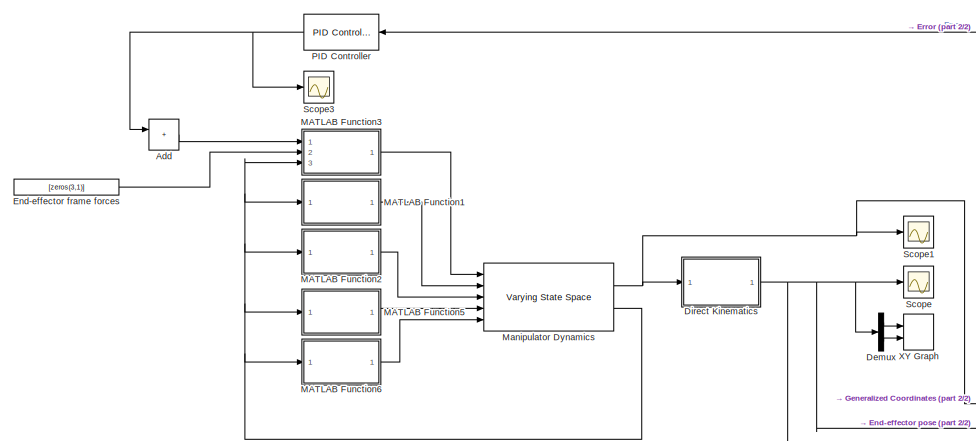
[diagram: root canvas - part 1/2, left side, full height]
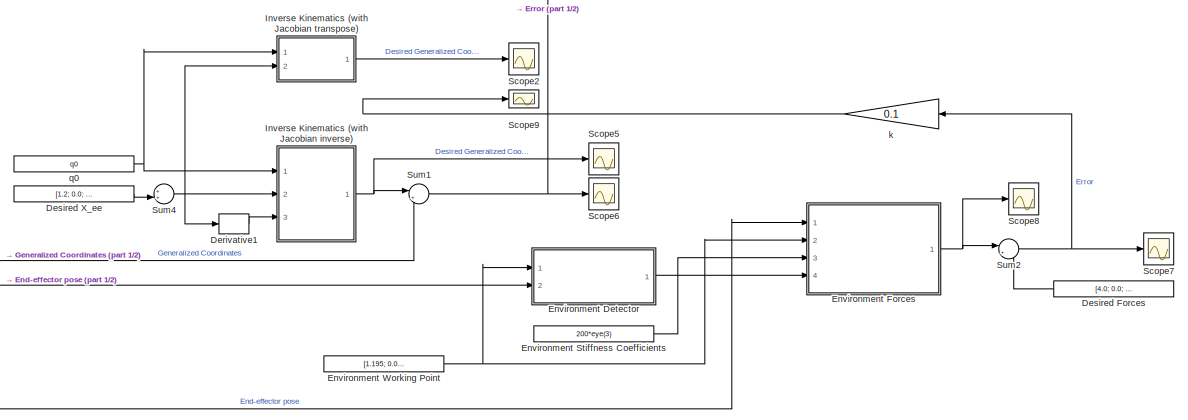
[diagram: root canvas - part 2/2, middle right region]
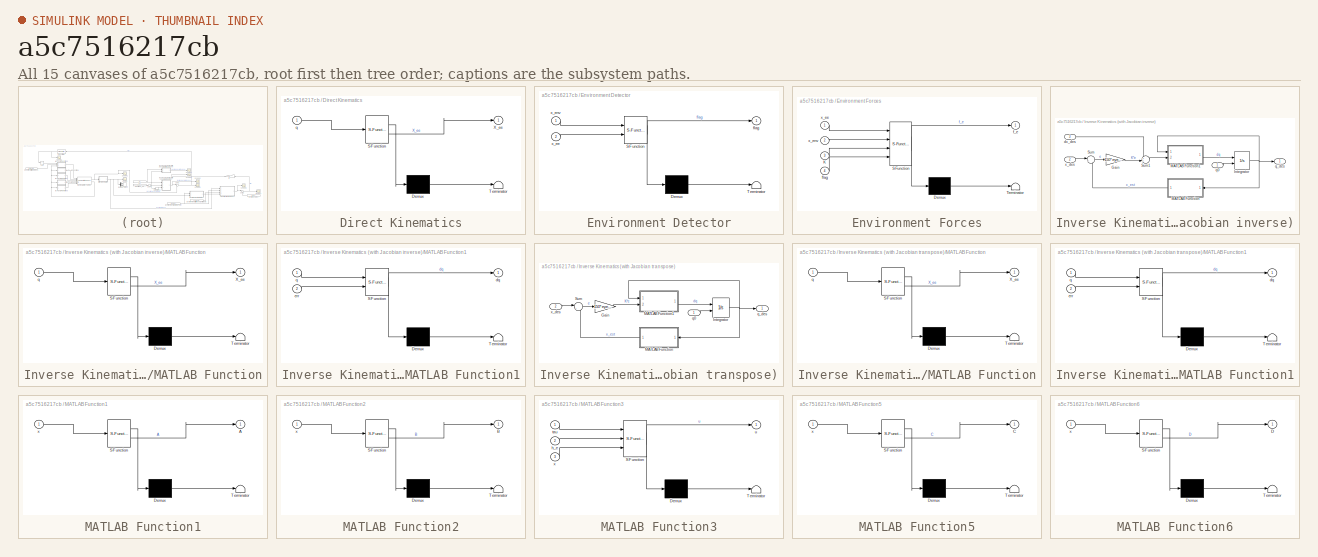
[diagram: thumbnail index - all 15 canvases of the model, root first then tree order]
MODEL slx_a5c7516217cb
KIND model
CONFIG AbsTol = auto
CONFIG EnableMultiTasking = off
CONFIG FixedStep = auto
CONFIG MaxStep = auto
CONFIG MinStep = auto
CONFIG RelTol = 1e-3
CONFIG SampleTimeConstraint = Unconstrained
CONFIG SolverName = ode45
CONFIG StartTime = 0.0
CONFIG StopTime = 60
BLOCK [Sum] Add
  IconShape = rectangular
  Ports = [2, 1]
BLOCK [Demux] Demux
  Outputs = 3
  Ports = [1, 3]
BLOCK [Derivative] Derivative1
BLOCK [Constant] Desired Forces
  Value = [4.0; 0.0; 0.0]
BLOCK [Constant] Desired X_ee
  Value = [1.2; 0.0; 1.0]
  VectorParams1D = off
BLOCK [SubSystem] Direct Kinematics
  ErrorFcn = Stateflow.Translate.translate
  PermitHierarchicalResolution = ExplicitOnly
  Ports = [1, 1]
  RequestExecContextInheritance = off
  SFBlockType = MATLAB Function
  TreatAsAtomicUnit = on
BLOCK [Demux] Direct Kinematics/ Demux 
  Outputs = 1
  Ports = [1, 1]
BLOCK [S-Function] Direct Kinematics/ SFunction 
  EnableBusSupport = on
  FunctionName = sf_sfun
  PortCounts = [1 2]
  Ports = [1, 2]
  SFcnIsStateOwnerBlock = off
  SFunctionDeploymentMode = off
  Tag = Stateflow S-Function 2
BLOCK [Terminator] Direct Kinematics/ Terminator 
BLOCK [Outport] Direct Kinematics/X_ee
BLOCK [Inport] Direct Kinematics/q
BLOCK [Constant] End-effector frame forces
  Value = [zeros(3,1)]
BLOCK [SubSystem] Environment Detector
  ErrorFcn = Stateflow.Translate.translate
  PermitHierarchicalResolution = ExplicitOnly
  Ports = [2, 1]
  RequestExecContextInheritance = off
  SFBlockType = MATLAB Function
  TreatAsAtomicUnit = on
BLOCK [Demux] Environment Detector/ Demux 
  Outputs = 1
  Ports = [1, 1]
BLOCK [S-Function] Environment Detector/ SFunction 
  EnableBusSupport = on
  FunctionName = sf_sfun
  PortCounts = [2 2]
  Ports = [2, 2]
  SFcnIsStateOwnerBlock = off
  SFunctionDeploymentMode = off
  Tag = Stateflow S-Function 12
BLOCK [Terminator] Environment Detector/ Terminator 
BLOCK [Outport] Environment Detector/flag
BLOCK [Inport] Environment Detector/x_ee
  Port = 2
BLOCK [Inport] Environment Detector/x_env
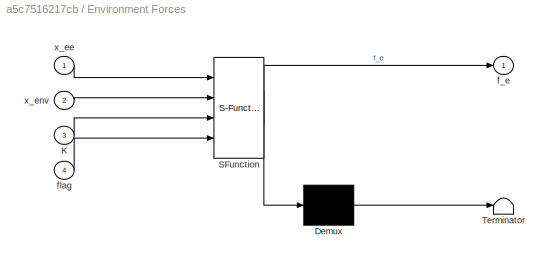
BLOCK [SubSystem] Environment Forces
  ErrorFcn = Stateflow.Translate.translate
  PermitHierarchicalResolution = ExplicitOnly
  Ports = [4, 1]
  RequestExecContextInheritance = off
  SFBlockType = MATLAB Function
  TreatAsAtomicUnit = on
BLOCK [Demux] Environment Forces/ Demux 
  Outputs = 1
  Ports = [1, 1]
BLOCK [S-Function] Environment Forces/ SFunction 
  EnableBusSupport = on
  FunctionName = sf_sfun
  PortCounts = [4 2]
  Ports = [4, 2]
  SFcnIsStateOwnerBlock = off
  SFunctionDeploymentMode = off
  Tag = Stateflow S-Function 13
BLOCK [Terminator] Environment Forces/ Terminator 
BLOCK [Inport] Environment Forces/K
  Port = 3
BLOCK [Outport] Environment Forces/f_e
BLOCK [Inport] Environment Forces/flag
  Port = 4
BLOCK [Inport] Environment Forces/x_ee
BLOCK [Inport] Environment Forces/x_env
  Port = 2
BLOCK [Constant] Environment Stiffness Coefficients
  Value = 200*eye(3)
BLOCK [Constant] Environment Working Point
  Value = [1.195; 0.0; 1.0]
BLOCK [SubSystem] Inverse Kinematics (with Jacobian inverse)
  Ports = [3, 1]
  RequestExecContextInheritance = off
BLOCK [Gain] Inverse Kinematics (with Jacobian inverse)/Gain
  Gain = 150*eye(3)
  Multiplication = Matrix(K*u)
BLOCK [Integrator] Inverse Kinematics (with Jacobian inverse)/Integrator
  InitialConditionSource = external
  Ports = [2, 1]
BLOCK [SubSystem] Inverse Kinematics (with Jacobian inverse)/MATLAB Function
  ErrorFcn = Stateflow.Translate.translate
  PermitHierarchicalResolution = ExplicitOnly
  Ports = [1, 1]
  RequestExecContextInheritance = off
  SFBlockType = MATLAB Function
  TreatAsAtomicUnit = on
BLOCK [Demux] Inverse Kinematics (with Jacobian inverse)/MATLAB Function/ Demux 
  Outputs = 1
  Ports = [1, 1]
BLOCK [S-Function] Inverse Kinematics (with Jacobian inverse)/MATLAB Function/ SFunction 
  EnableBusSupport = on
  FunctionName = sf_sfun
  PortCounts = [1 2]
  Ports = [1, 2]
  SFcnIsStateOwnerBlock = off
  SFunctionDeploymentMode = off
  Tag = Stateflow S-Function 6
BLOCK [Terminator] Inverse Kinematics (with Jacobian inverse)/MATLAB Function/ Terminator 
BLOCK [Outport] Inverse Kinematics (with Jacobian inverse)/MATLAB Function/X_ee
BLOCK [Inport] Inverse Kinematics (with Jacobian inverse)/MATLAB Function/q
BLOCK [SubSystem] Inverse Kinematics (with Jacobian inverse)/MATLAB Function1
  ErrorFcn = Stateflow.Translate.translate
  PermitHierarchicalResolution = ExplicitOnly
  Ports = [2, 1]
  RequestExecContextInheritance = off
  SFBlockType = MATLAB Function
  TreatAsAtomicUnit = on
BLOCK [Demux] Inverse Kinematics (with Jacobian inverse)/MATLAB Function1/ Demux 
  Outputs = 1
  Ports = [1, 1]
BLOCK [S-Function] Inverse Kinematics (with Jacobian inverse)/MATLAB Function1/ SFunction 
  EnableBusSupport = on
  FunctionName = sf_sfun
  PortCounts = [2 2]
  Ports = [2, 2]
  SFcnIsStateOwnerBlock = off
  SFunctionDeploymentMode = off
  Tag = Stateflow S-Function 7
BLOCK [Terminator] Inverse Kinematics (with Jacobian inverse)/MATLAB Function1/ Terminator 
BLOCK [Outport] Inverse Kinematics (with Jacobian inverse)/MATLAB Function1/dq
BLOCK [Inport] Inverse Kinematics (with Jacobian inverse)/MATLAB Function1/err
  Port = 2
BLOCK [Inport] Inverse Kinematics (with Jacobian inverse)/MATLAB Function1/q
BLOCK [Sum] Inverse Kinematics (with Jacobian inverse)/Sum
  Inputs = |+-
  Ports = [2, 1]
BLOCK [Sum] Inverse Kinematics (with Jacobian inverse)/Sum1
  Inputs = ++|
  Ports = [2, 1]
BLOCK [Inport] Inverse Kinematics (with Jacobian inverse)/dx_des
  Port = 3
BLOCK [Inport] Inverse Kinematics (with Jacobian inverse)/q0
BLOCK [Outport] Inverse Kinematics (with Jacobian inverse)/q_des
BLOCK [Inport] Inverse Kinematics (with Jacobian inverse)/x_des
  Port = 2
BLOCK [SubSystem] Inverse Kinematics (with Jacobian transpose)
  Ports = [2, 1]
  RequestExecContextInheritance = off
BLOCK [Gain] Inverse Kinematics (with Jacobian transpose)/Gain
  Gain = 150*eye(3)
  Multiplication = Matrix(K*u)
BLOCK [Integrator] Inverse Kinematics (with Jacobian transpose)/Integrator
  InitialConditionSource = external
  Ports = [2, 1]
BLOCK [SubSystem] Inverse Kinematics (with Jacobian transpose)/MATLAB Function
  ErrorFcn = Stateflow.Translate.translate
  PermitHierarchicalResolution = ExplicitOnly
  Ports = [1, 1]
  RequestExecContextInheritance = off
  SFBlockType = MATLAB Function
  TreatAsAtomicUnit = on
BLOCK [Demux] Inverse Kinematics (with Jacobian transpose)/MATLAB Function/ Demux 
  Outputs = 1
  Ports = [1, 1]
BLOCK [S-Function] Inverse Kinematics (with Jacobian transpose)/MATLAB Function/ SFunction 
  EnableBusSupport = on
  FunctionName = sf_sfun
  PortCounts = [1 2]
  Ports = [1, 2]
  SFcnIsStateOwnerBlock = off
  SFunctionDeploymentMode = off
  Tag = Stateflow S-Function 10
BLOCK [Terminator] Inverse Kinematics (with Jacobian transpose)/MATLAB Function/ Terminator 
BLOCK [Outport] Inverse Kinematics (with Jacobian transpose)/MATLAB Function/X_ee
BLOCK [Inport] Inverse Kinematics (with Jacobian transpose)/MATLAB Function/q
BLOCK [SubSystem] Inverse Kinematics (with Jacobian transpose)/MATLAB Function1
  ErrorFcn = Stateflow.Translate.translate
  PermitHierarchicalResolution = ExplicitOnly
  Ports = [2, 1]
  RequestExecContextInheritance = off
  SFBlockType = MATLAB Function
  TreatAsAtomicUnit = on
BLOCK [Demux] Inverse Kinematics (with Jacobian transpose)/MATLAB Function1/ Demux 
  Outputs = 1
  Ports = [1, 1]
BLOCK [S-Function] Inverse Kinematics (with Jacobian transpose)/MATLAB Function1/ SFunction 
  EnableBusSupport = on
  FunctionName = sf_sfun
  PortCounts = [2 2]
  Ports = [2, 2]
  SFcnIsStateOwnerBlock = off
  SFunctionDeploymentMode = off
  Tag = Stateflow S-Function 11
BLOCK [Terminator] Inverse Kinematics (with Jacobian transpose)/MATLAB Function1/ Terminator 
BLOCK [Outport] Inverse Kinematics (with Jacobian transpose)/MATLAB Function1/dq
BLOCK [Inport] Inverse Kinematics (with Jacobian transpose)/MATLAB Function1/err
  Port = 2
BLOCK [Inport] Inverse Kinematics (with Jacobian transpose)/MATLAB Function1/q
BLOCK [Sum] Inverse Kinematics (with Jacobian transpose)/Sum
  Inputs = |+-
  Ports = [2, 1]
BLOCK [Inport] Inverse Kinematics (with Jacobian transpose)/q0
BLOCK [Outport] Inverse Kinematics (with Jacobian transpose)/q_des
BLOCK [Inport] Inverse Kinematics (with Jacobian transpose)/x_des
  Port = 2
BLOCK [SubSystem] MATLAB Function1
  ErrorFcn = Stateflow.Translate.translate
  PermitHierarchicalResolution = ExplicitOnly
  Ports = [1, 1]
  RequestExecContextInheritance = off
  SFBlockType = MATLAB Function
  TreatAsAtomicUnit = on
BLOCK [Demux] MATLAB Function1/ Demux 
  Outputs = 1
  Ports = [1, 1]
BLOCK [S-Function] MATLAB Function1/ SFunction 
  EnableBusSupport = on
  FunctionName = sf_sfun
  PortCounts = [1 2]
  Ports = [1, 2]
  SFcnIsStateOwnerBlock = off
  SFunctionDeploymentMode = off
  Tag = Stateflow S-Function 1
BLOCK [Terminator] MATLAB Function1/ Terminator 
BLOCK [Outport] MATLAB Function1/A
BLOCK [Inport] MATLAB Function1/x
BLOCK [SubSystem] MATLAB Function2
  ErrorFcn = Stateflow.Translate.translate
  PermitHierarchicalResolution = ExplicitOnly
  Ports = [1, 1]
  RequestExecContextInheritance = off
  SFBlockType = MATLAB Function
  TreatAsAtomicUnit = on
BLOCK [Demux] MATLAB Function2/ Demux 
  Outputs = 1
  Ports = [1, 1]
BLOCK [S-Function] MATLAB Function2/ SFunction 
  EnableBusSupport = on
  FunctionName = sf_sfun
  PortCounts = [1 2]
  Ports = [1, 2]
  SFcnIsStateOwnerBlock = off
  SFunctionDeploymentMode = off
  Tag = Stateflow S-Function 3
BLOCK [Terminator] MATLAB Function2/ Terminator 
BLOCK [Outport] MATLAB Function2/B
BLOCK [Inport] MATLAB Function2/x
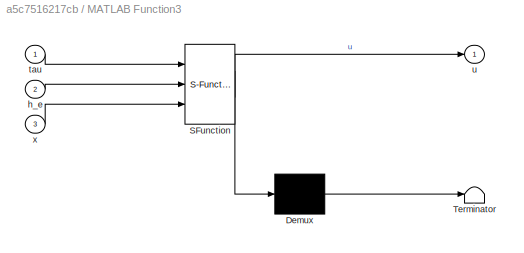
BLOCK [SubSystem] MATLAB Function3
  ErrorFcn = Stateflow.Translate.translate
  PermitHierarchicalResolution = ExplicitOnly
  Ports = [3, 1]
  RequestExecContextInheritance = off
  SFBlockType = MATLAB Function
  TreatAsAtomicUnit = on
BLOCK [Demux] MATLAB Function3/ Demux 
  Outputs = 1
  Ports = [1, 1]
BLOCK [S-Function] MATLAB Function3/ SFunction 
  EnableBusSupport = on
  FunctionName = sf_sfun
  PortCounts = [3 2]
  Ports = [3, 2]
  SFcnIsStateOwnerBlock = off
  SFunctionDeploymentMode = off
  Tag = Stateflow S-Function 4
BLOCK [Terminator] MATLAB Function3/ Terminator 
BLOCK [Inport] MATLAB Function3/h_e
  Port = 2
BLOCK [Inport] MATLAB Function3/tau
BLOCK [Outport] MATLAB Function3/u
BLOCK [Inport] MATLAB Function3/x
  Port = 3
BLOCK [SubSystem] MATLAB Function5
  ErrorFcn = Stateflow.Translate.translate
  PermitHierarchicalResolution = ExplicitOnly
  Ports = [1, 1]
  RequestExecContextInheritance = off
  SFBlockType = MATLAB Function
  TreatAsAtomicUnit = on
BLOCK [Demux] MATLAB Function5/ Demux 
  Outputs = 1
  Ports = [1, 1]
BLOCK [S-Function] MATLAB Function5/ SFunction 
  EnableBusSupport = on
  FunctionName = sf_sfun
  PortCounts = [1 2]
  Ports = [1, 2]
  SFcnIsStateOwnerBlock = off
  SFunctionDeploymentMode = off
  Tag = Stateflow S-Function 8
BLOCK [Terminator] MATLAB Function5/ Terminator 
BLOCK [Outport] MATLAB Function5/C
BLOCK [Inport] MATLAB Function5/x
BLOCK [SubSystem] MATLAB Function6
  ErrorFcn = Stateflow.Translate.translate
  PermitHierarchicalResolution = ExplicitOnly
  Ports = [1, 1]
  RequestExecContextInheritance = off
  SFBlockType = MATLAB Function
  TreatAsAtomicUnit = on
BLOCK [Demux] MATLAB Function6/ Demux 
  Outputs = 1
  Ports = [1, 1]
BLOCK [S-Function] MATLAB Function6/ SFunction 
  EnableBusSupport = on
  FunctionName = sf_sfun
  PortCounts = [1 2]
  Ports = [1, 2]
  SFcnIsStateOwnerBlock = off
  SFunctionDeploymentMode = off
  Tag = Stateflow S-Function 9
BLOCK [Terminator] MATLAB Function6/ Terminator 
BLOCK [Outport] MATLAB Function6/D
BLOCK [Inport] MATLAB Function6/x
BLOCK [Reference] Manipulator Dynamics  REF=cstblocks/Linear Parameter Varying/Varying State Space
  Ports = [5, 2]
  SourceBlock = cstblocks/Linear Parameter Varying/Varying State Space
  SourceProductBaseCode = CT
  SourceType = Varying State Space
BLOCK [Reference] PID Controller  REF=slpidlib/PID Controller
  Ports = [1, 1]
  SourceBlock = slpidlib/PID Controller
  SourceProductBaseCode = SL
  SourceType = PID 1dof
BLOCK [Scope] Scope
  Floating = off
  NumInputPorts = 1
  Ports = [1]
  ScopeSpecificationString = Simulink.scopes.TimeScopeBlockCfg('CurrentConfiguration', extmgr.ConfigurationSet(extmgr.Configuration('Core','General UI',true,'FigureColor',[1 1 1]),extmgr.Configuration('Core','Source UI',true),extmgr.Configuration('Sources','WiredSimulink',true,'SampleTime','0.01'),extmgr.Configuration('Visuals','Time Domain',true,'SerializedDisplays',{struct('MinYLimReal','-0.1545','MaxYLimReal','1.39046','YL...<+1859ch>
BLOCK [Scope] Scope1
  Floating = off
  NumInputPorts = 1
  Ports = [1]
  ScopeSpecificationString = Simulink.scopes.TimeScopeBlockCfg('CurrentConfiguration', extmgr.ConfigurationSet(extmgr.Configuration('Core','General UI',true,'FigureColor',[1 1 1]),extmgr.Configuration('Core','Source UI',true),extmgr.Configuration('Sources','WiredSimulink',true,'SampleTime','0.01','DataLoggingVariableName','ScopeData1'),extmgr.Configuration('Visuals','Time Domain',true,'SerializedDisplays',{struct('MinYLimReal...<+1839ch>
BLOCK [Scope] Scope2
  Floating = off
  NumInputPorts = 1
  Ports = [1]
  ScopeSpecificationString = Simulink.scopes.TimeScopeBlockCfg('CurrentConfiguration', extmgr.ConfigurationSet(extmgr.Configuration('Core','General UI',true,'FigureColor',[1 1 1]),extmgr.Configuration('Core','Source UI',true),extmgr.Configuration('Sources','WiredSimulink',true,'SampleTime','0.01','DataLoggingVariableName','ScopeData2'),extmgr.Configuration('Visuals','Time Domain',true,'SerializedDisplays',{struct('MinYLimReal...<+1892ch>
BLOCK [Scope] Scope3
  Floating = off
  NumInputPorts = 1
  Ports = [1]
  ScopeSpecificationString = Simulink.scopes.TimeScopeBlockCfg('CurrentConfiguration', extmgr.ConfigurationSet(extmgr.Configuration('Core','General UI',true,'FigureColor',[1 1 1]),extmgr.Configuration('Core','Source UI',true),extmgr.Configuration('Sources','WiredSimulink',true,'SampleTime','0.01','DataLoggingVariableName','ScopeData3'),extmgr.Configuration('Visuals','Time Domain',true,'SerializedDisplays',{struct('MinYLimReal...<+1843ch>
BLOCK [Scope] Scope5
  Floating = off
  NumInputPorts = 1
  Ports = [1]
  ScopeSpecificationString = Simulink.scopes.TimeScopeBlockCfg('CurrentConfiguration', extmgr.ConfigurationSet(extmgr.Configuration('Core','General UI',true,'FigureColor',[1 1 1]),extmgr.Configuration('Core','Source UI',true),extmgr.Configuration('Sources','WiredSimulink',true,'SampleTime','0.01','DataLoggingVariableName','ScopeData2'),extmgr.Configuration('Visuals','Time Domain',true,'SerializedDisplays',{struct('MinYLimReal...<+1892ch>
BLOCK [Scope] Scope6
  Floating = off
  NumInputPorts = 1
  Ports = [1]
  ScopeSpecificationString = Simulink.scopes.TimeScopeBlockCfg('CurrentConfiguration', extmgr.ConfigurationSet(extmgr.Configuration('Core','General UI',true,'FigureColor',[1 1 1]),extmgr.Configuration('Core','Source UI',true),extmgr.Configuration('Sources','WiredSimulink',true,'SampleTime','0.01','DataLoggingVariableName','ScopeData1'),extmgr.Configuration('Visuals','Time Domain',true,'SerializedDisplays',{struct('MinYLimReal...<+1808ch>
BLOCK [Scope] Scope7
  Floating = off
  NumInputPorts = 1
  Ports = [1]
  ScopeSpecificationString = Simulink.scopes.TimeScopeBlockCfg('CurrentConfiguration', extmgr.ConfigurationSet(extmgr.Configuration('Core','General UI',true,'FigureColor',[1 1 1]),extmgr.Configuration('Core','Source UI',true),extmgr.Configuration('Sources','WiredSimulink',true,'SampleTime','0.01','DataLoggingVariableName','ScopeData3'),extmgr.Configuration('Visuals','Time Domain',true,'SerializedDisplays',{struct('MinYLimReal...<+1933ch>
BLOCK [Scope] Scope8
  Floating = off
  NumInputPorts = 1
  Ports = [1]
  ScopeSpecificationString = Simulink.scopes.TimeScopeBlockCfg('CurrentConfiguration', extmgr.ConfigurationSet(extmgr.Configuration('Core','General UI',true,'FigureColor',[1 1 1]),extmgr.Configuration('Core','Source UI',true),extmgr.Configuration('Sources','WiredSimulink',true,'SampleTime','0.01','DataLoggingVariableName','ScopeData4'),extmgr.Configuration('Visuals','Time Domain',true,'SerializedDisplays',{struct('MinYLimReal...<+1933ch>
BLOCK [Scope] Scope9
  Floating = off
  NumInputPorts = 1
  Ports = [1]
  ScopeSpecificationString = Simulink.scopes.TimeScopeBlockCfg('CurrentConfiguration', extmgr.ConfigurationSet(extmgr.Configuration('Core','General UI',true,'FigureColor',[1 1 1]),extmgr.Configuration('Core','Source UI',true),extmgr.Configuration('Sources','WiredSimulink',true,'SampleTime','0.01','DataLoggingVariableName','ScopeData1'),extmgr.Configuration('Visuals','Time Domain',true,'SerializedDisplays',{struct('MinYLimReal...<+1783ch>
BLOCK [Sum] Sum1
  Inputs = |+-
  Ports = [2, 1]
BLOCK [Sum] Sum2
  Inputs = |++
  Ports = [2, 1]
BLOCK [Sum] Sum4
  Inputs = ++|
  Ports = [2, 1]
BLOCK [Record] XY Graph
  CompatibilityTag = XY
  FileSettingsInternal = {"entries":[{"content":{"excelSettings":{"content":{},"type":"Streamout.ExcelSettings"}},"type":"Streamout.FileSettingStorage","uuid":"d05438c2-ad3f-4926-96d2-a4bb65339b46"}],"packageUris":["http://schema.mathworks.com/mf0/streamout_blocks/R2020a"],"version":"1.0"}
  Layout = [1 1]
  Ports = [2]
  SignalsInternal = {"entries":[{"content":{"signals":[{"content":{"blockPath":["manip_model/XY Graph"],"channel":[],"dimensions":[1,1],"domain":"manip_model/XY Graph","lineColor":"#a2142f","plots":[1],"port":1,"sid":[""],"signalID":28857,"signalName":"Demux:1"},"type":"RecordBlkView.Signal","uuid":"efb30218-c5a0-4e86-a6ee-0fbc5ee528c5"},{"content":{"blockPath":["manip_model/XY Graph"],"channel":[],"dimensions":[1,1]...<+381ch>
  VisualizationBindings = {"xyplotplugin":{"info":[{"series":[{"bindingParametersList":[{"parameter":"X-Axis","signalID":28857,"signalName":"Demux:1"},{"parameter":"Y-Axis","signalID":28861,"signalName":"Demux:3"}],"seriesID":57853}],"subplotID":1}]}}
BLOCK [Gain] k
  Gain = 0.1
BLOCK [Constant] q0
  Value = q0
  VectorParams1D = off
LINE Add:1 -> MATLAB Function3:1
LINE Demux:1 -> XY Graph:1
LINE Demux:3 -> XY Graph:2
LINE Derivative1:1 -> Inverse Kinematics (with Jacobian inverse):3
LINE Desired Forces:1 -> Sum2:2
LINE Desired X_ee:1 -> Sum4:2
NET Direct Kinematics:1 -> Demux:1, Environment Detector:2, Environment Forces:1, Scope:1
LINE End-effector frame forces:1 -> MATLAB Function3:2
LINE Environment Detector:1 -> Environment Forces:4
NET Environment Forces:1 -> Scope8:1, Sum2:1
LINE Environment Stiffness Coefficients:1 -> Environment Forces:3
NET Environment Working Point:1 -> Environment Detector:1, Environment Forces:2
LINE Inverse Kinematics (with Jacobian inverse)/Gain:1 -> Inverse Kinematics (with Jacobian inverse)/Sum1:2
NET Inverse Kinematics (with Jacobian inverse)/Integrator:1 -> Inverse Kinematics (with Jacobian inverse)/MATLAB Function1:1, Inverse Kinematics (with Jacobian inverse)/MATLAB Function:1, Inverse Kinematics (with Jacobian inverse)/q_des:1
LINE Inverse Kinematics (with Jacobian inverse)/MATLAB Function1:1 -> Inverse Kinematics (with Jacobian inverse)/Integrator:1
LINE Inverse Kinematics (with Jacobian inverse)/MATLAB Function:1 -> Inverse Kinematics (with Jacobian inverse)/Sum:2
LINE Inverse Kinematics (with Jacobian inverse)/Sum1:1 -> Inverse Kinematics (with Jacobian inverse)/MATLAB Function1:2
LINE Inverse Kinematics (with Jacobian inverse)/Sum:1 -> Inverse Kinematics (with Jacobian inverse)/Gain:1
LINE Inverse Kinematics (with Jacobian inverse)/dx_des:1 -> Inverse Kinematics (with Jacobian inverse)/Sum1:1
LINE Inverse Kinematics (with Jacobian inverse)/q0:1 -> Inverse Kinematics (with Jacobian inverse)/Integrator:2
LINE Inverse Kinematics (with Jacobian inverse)/x_des:1 -> Inverse Kinematics (with Jacobian inverse)/Sum:1
NET Inverse Kinematics (with Jacobian inverse):1 -> Scope5:1, Sum1:1
LINE Inverse Kinematics (with Jacobian transpose)/Gain:1 -> Inverse Kinematics (with Jacobian transpose)/MATLAB Function1:2
NET Inverse Kinematics (with Jacobian transpose)/Integrator:1 -> Inverse Kinematics (with Jacobian transpose)/MATLAB Function1:1, Inverse Kinematics (with Jacobian transpose)/MATLAB Function:1, Inverse Kinematics (with Jacobian transpose)/q_des:1
LINE Inverse Kinematics (with Jacobian transpose)/MATLAB Function1:1 -> Inverse Kinematics (with Jacobian transpose)/Integrator:1
LINE Inverse Kinematics (with Jacobian transpose)/MATLAB Function:1 -> Inverse Kinematics (with Jacobian transpose)/Sum:2
LINE Inverse Kinematics (with Jacobian transpose)/Sum:1 -> Inverse Kinematics (with Jacobian transpose)/Gain:1
LINE Inverse Kinematics (with Jacobian transpose)/q0:1 -> Inverse Kinematics (with Jacobian transpose)/Integrator:2
LINE Inverse Kinematics (with Jacobian transpose)/x_des:1 -> Inverse Kinematics (with Jacobian transpose)/Sum:1
LINE Inverse Kinematics (with Jacobian transpose):1 -> Scope2:1
LINE MATLAB Function1:1 -> Manipulator Dynamics:2
LINE MATLAB Function2:1 -> Manipulator Dynamics:3
LINE MATLAB Function3:1 -> Manipulator Dynamics:1
LINE MATLAB Function5:1 -> Manipulator Dynamics:4
LINE MATLAB Function6:1 -> Manipulator Dynamics:5
NET Manipulator Dynamics:1 -> Direct Kinematics:1, Scope1:1, Sum1:2
NET Manipulator Dynamics:2 -> MATLAB Function1:1, MATLAB Function2:1, MATLAB Function3:3, MATLAB Function5:1, MATLAB Function6:1
NET PID Controller:1 -> Add:1, Scope3:1
NET Sum1:1 -> PID Controller:1, Scope6:1
NET Sum2:1 -> Scope7:1, k:1
NET Sum4:1 -> Derivative1:1, Inverse Kinematics (with Jacobian inverse):2, Inverse Kinematics (with Jacobian transpose):2
LINE k:1 -> Scope9:1
NET q0:1 -> Inverse Kinematics (with Jacobian inverse):1, Inverse Kinematics (with Jacobian transpose):1
note: NET lines group one-source signal fan-out (src -> all destinations, sorted); 1:1 wires keep LINE
CHART MATLAB Function1 states=1 transitions=1
  STATE_LABEL 'eML_blk_kernel()'
  STATE_LABEL 'SCRIPT:\nfunction A = Matrix_A(x)\nn = numel(x)/2;\n\nA = [zeros(n), eye(n);\n     zeros(n), -get_M(x(1:n))^-1 * ( get_C(x) + get_D(x) )];'
CHART Direct Kinematics states=1 transitions=1
  STATE_LABEL 'eML_blk_kernel()'
  STATE_LABEL 'SCRIPT:\nfunction X_ee = EE_Pose(q)\n\nX_ee = get_X_ee(q);'
CHART MATLAB Function2 states=1 transitions=1
  STATE_LABEL 'eML_blk_kernel()'
  STATE_LABEL 'SCRIPT:\nfunction B = Matrix_B(x)\n    n = numel(x)/2;\n\n    B = [zeros(n); get_M(x(1:n))^-1];'
CHART MATLAB Function3 states=1 transitions=1
  STATE_LABEL 'eML_blk_kernel()'
  STATE_LABEL "SCRIPT:\nfunction u = Vector_u(tau,h_e,x)\nn = numel(x)/2;\n\nu = -get_g(x(1:n)) + get_Jv_ee(x(1:n))'*h_e + tau;"
CHART Inverse Kinematics (with Jacobian inverse)/MATLAB Function states=1 transitions=1
  STATE_LABEL 'eML_blk_kernel()'
  STATE_LABEL 'SCRIPT:\nfunction X_ee = Kinematics(q)\n\nX_ee = get_X_ee(q);\n'
CHART Inverse Kinematics (with Jacobian inverse)/MATLAB Function1 states=1 transitions=1
  STATE_LABEL 'eML_blk_kernel()'
  STATE_LABEL 'SCRIPT:\nfunction dq = Jacobian(q, err)\n\ndq = pinv(get_Jv_ee(q)) * err;\n'
CHART MATLAB Function5 states=1 transitions=1
  STATE_LABEL 'eML_blk_kernel()'
  STATE_LABEL 'SCRIPT:\nfunction C = Matrix_C(x)\n    n = numel(x)/2;\n\n    C = [eye(n,n), zeros(n,n)];'
CHART MATLAB Function6 states=1 transitions=1
  STATE_LABEL 'eML_blk_kernel()'
  STATE_LABEL 'SCRIPT:\nfunction D = Matrix_D(x)\n    n = numel(x)/2;\n\n    D = [zeros(n,n)];'
CHART Inverse Kinematics (with Jacobian transpose)/MATLAB Function states=1 transitions=1
  STATE_LABEL 'eML_blk_kernel()'
  STATE_LABEL 'SCRIPT:\nfunction X_ee = Kinematics(q)\n\nX_ee = get_X_ee(q);\n'
CHART Inverse Kinematics (with Jacobian transpose)/MATLAB Function1 states=1 transitions=1
  STATE_LABEL 'eML_blk_kernel()'
  STATE_LABEL 'SCRIPT:\nfunction dq = Jacobian(q, err)\n\ndq = transpose(get_Jv_ee(q)) * err;\n'
CHART Environment Detector states=1 transitions=1
  STATE_LABEL 'eML_blk_kernel()'
  STATE_LABEL 'SCRIPT:\nfunction flag = Env_Detector(x_env, x_ee)\n\n%if (norm(err, 2) < 0.05)\nif (x_ee(1) >= x_env(1))\n    flag = true;\nelse\n    flag = false;\nend'
CHART Environment Forces states=1 transitions=1
  STATE_LABEL 'eML_blk_kernel()'
  STATE_LABEL 'SCRIPT:\nfunction f_e = Env_Forces(x_ee, x_env, K, flag)\n\nif (flag == true)\n    %f_e = K*(x_ee - x_env);\n    f_e = zeros(3,1);\n    f_e(1) = -K(1,1) * (x_ee(1) - x_env(1));\nelse\n    f_e = zeros(3,1);\nend'
CHART  states=0 transitions=0
CHART  states=0 transitions=0
CHART  states=0 transitions=0
CHART  states=0 transitions=0
CHART  states=0 transitions=0
CHART  states=0 transitions=0
CHART  states=0 transitions=0
CHART  states=0 transitions=0
CHART  states=0 transitions=0
CHART  states=0 transitions=0
CHART  states=0 transitions=0
CHART  states=0 transitions=0
